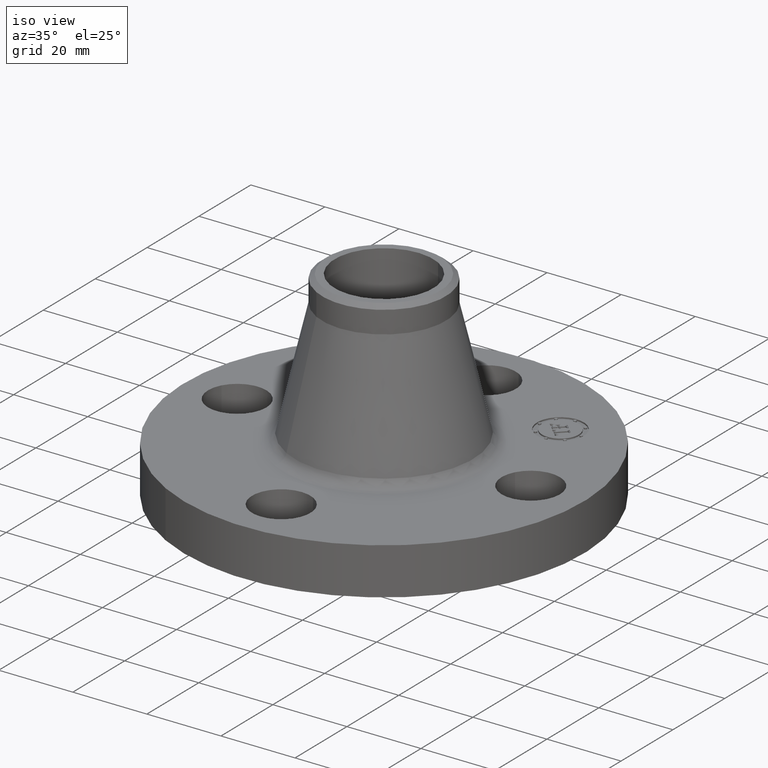
[diagram: clean part render]
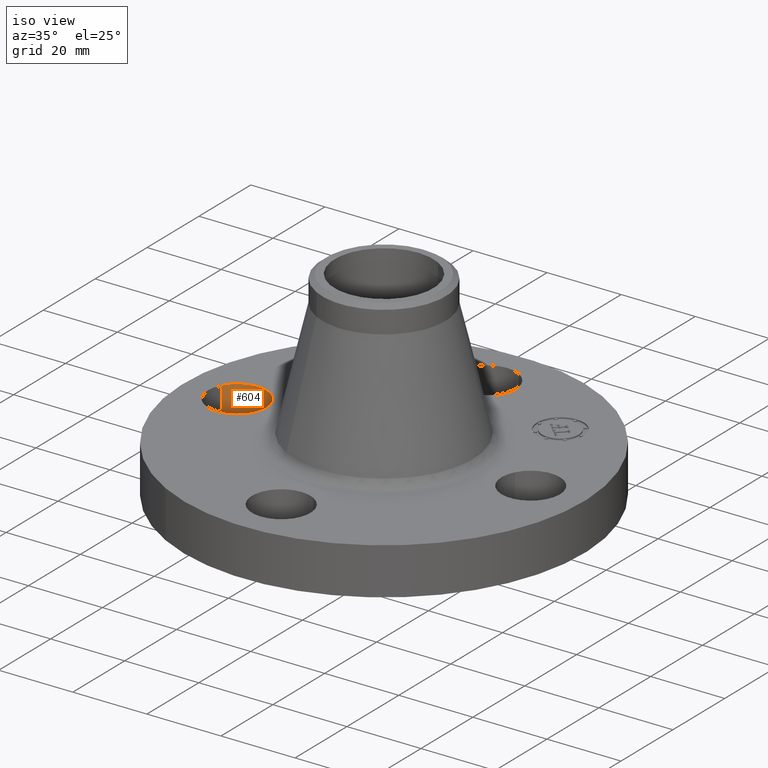
[diagram: same view with one face highlighted and labeled with its STEP entity id]
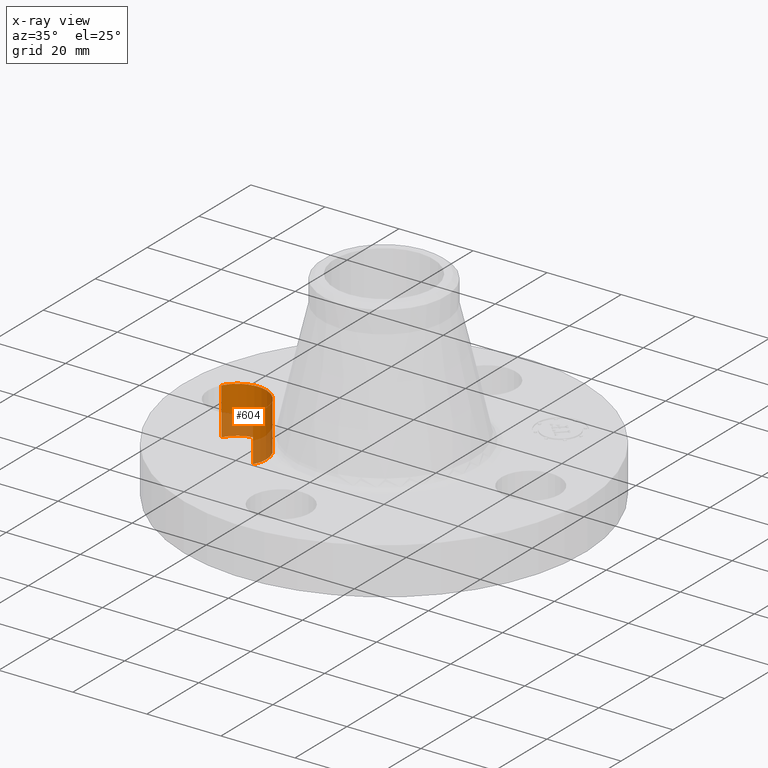
[diagram: x-ray of the same camera — body ghosted, the highlighted face saturated]
A machine part, iso view. The second image highlights one B-rep face of the part: STEP entity #604.
The next image is the same camera in x-ray: the body ghosted, the highlighted face saturated — about 40% of this face is hidden behind the body in this view.
In plain terms, the highlighted cylindrical surface (edge-blend (fillet) strip) has radius 7.874 mm, axis along (-0, 0, -1).
Its self-contained STEP definition (entity closure, byte-faithful):
#493=AXIS2_PLACEMENT_3D('Circle Axis2P3D',#491,#492,$) ;
#565=AXIS2_PLACEMENT_3D('Cylinder Axis2P3D',#562,#563,#564) ;
#595=AXIS2_PLACEMENT_3D('Circle Axis2P3D',#593,#594,$) ;
#486=CARTESIAN_POINT('Vertex',(-1.28794940582,-0.148621916968,0.)) ;
#488=CARTESIAN_POINT('Vertex',(-1.83205059419,0.148621916968,0.)) ;
#491=CARTESIAN_POINT('Axis2P3D Location',(-1.56000000001,-2.79741234551E-016,0.)) ;
#562=CARTESIAN_POINT('Axis2P3D Location',(-1.56000000001,-1.91044900668E-016,0.496062992128)) ;
#567=CARTESIAN_POINT('Line Origine',(-1.28794940582,-0.148621916968,0.250000000001)) ;
#571=CARTESIAN_POINT('Vertex',(-1.28794940582,-0.148621916968,0.500000000002)) ;
#574=CARTESIAN_POINT('Line Origine',(-1.83205059419,0.148621916968,0.250000000001)) ;
#578=CARTESIAN_POINT('Vertex',(-1.83205059419,0.148621916968,0.500000000002)) ;
#593=CARTESIAN_POINT('Axis2P3D Location',(-1.56000000001,-1.91044900668E-016,0.500000000002)) ;
#492=DIRECTION('Axis2P3D Direction',(0.,0.,-0.0393700787402)) ;
#563=DIRECTION('Axis2P3D Direction',(-0.,0.,-0.0393700787402)) ;
#564=DIRECTION('Axis2P3D XDirection',(-0.0345504945626,0.0188750212049,0.)) ;
#568=DIRECTION('Vector Direction',(0.,0.,-0.0393700787402)) ;
#575=DIRECTION('Vector Direction',(0.,0.,-0.0393700787402)) ;
#594=DIRECTION('Axis2P3D Direction',(-0.,0.,-0.0393700787402)) ;
#569=VECTOR('Line Direction',#568,0.0393700787402) ;
#576=VECTOR('Line Direction',#575,0.0393700787402) ;
#599=ORIENTED_EDGE('',*,*,#580,.F.) ;
#600=ORIENTED_EDGE('',*,*,#495,.T.) ;
#601=ORIENTED_EDGE('',*,*,#573,.T.) ;
#602=ORIENTED_EDGE('',*,*,#597,.F.) ;
#604=ADVANCED_FACE('PartBody',(#603),#566,.F.) ;
#494=CIRCLE('generated circle',#493,0.310000000001) ;
#596=CIRCLE('generated circle',#595,0.310000000001) ;
#566=CYLINDRICAL_SURFACE('generated cylinder',#565,0.310000000001) ;
#495=EDGE_CURVE('',#489,#487,#494,.T.) ;
#573=EDGE_CURVE('',#487,#572,#570,.F.) ;
#580=EDGE_CURVE('',#489,#579,#577,.F.) ;
#597=EDGE_CURVE('',#579,#572,#596,.T.) ;
#598=EDGE_LOOP('',(#599,#600,#601,#602)) ;
#603=FACE_OUTER_BOUND('',#598,.T.) ;
#570=LINE('Line',#567,#569) ;
#577=LINE('Line',#574,#576) ;
#487=VERTEX_POINT('',#486) ;
#489=VERTEX_POINT('',#488) ;
#572=VERTEX_POINT('',#571) ;
#579=VERTEX_POINT('',#578) ;